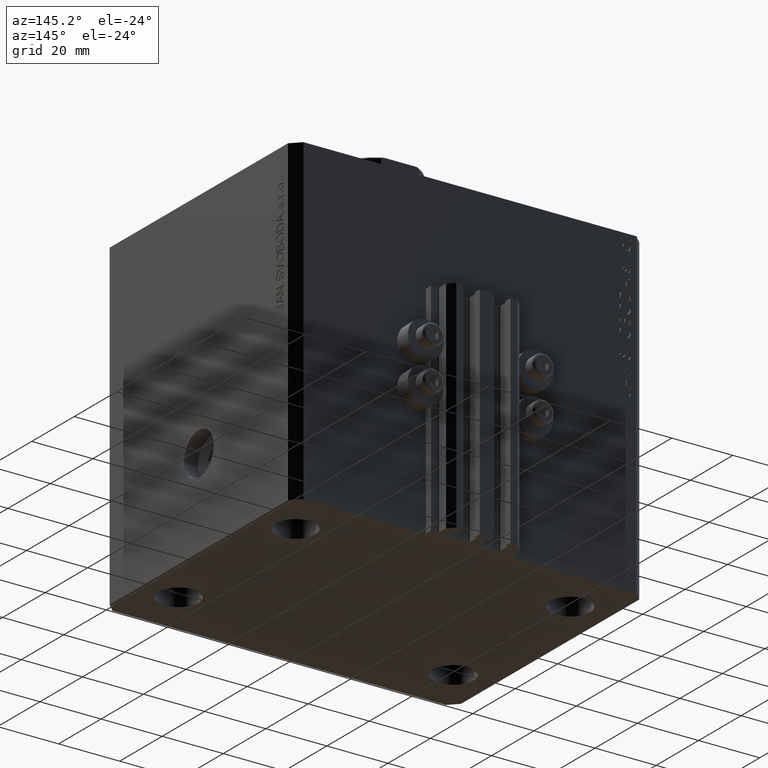
[diagram: clean part render]
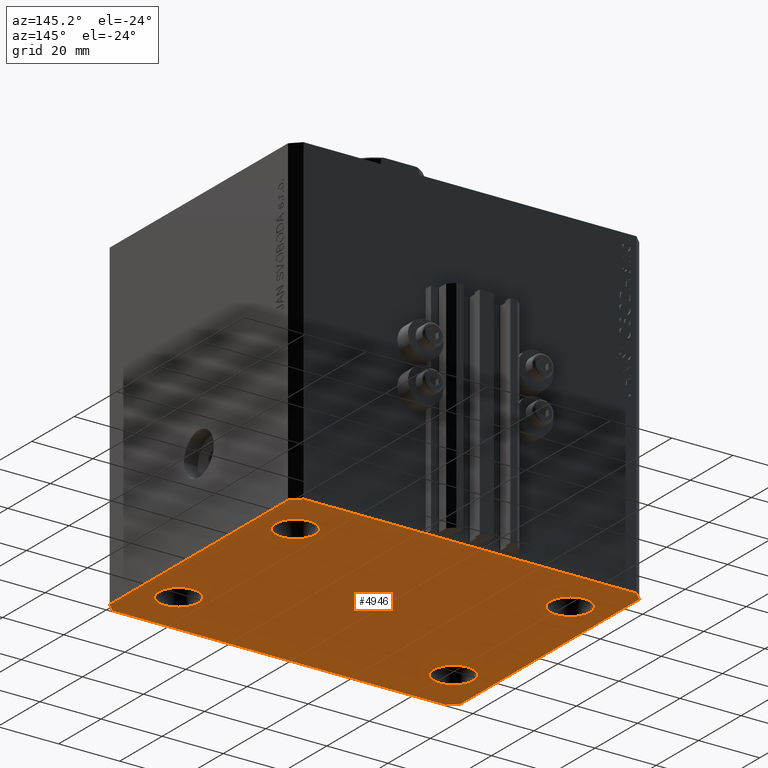
[diagram: same view with one face highlighted and labeled with its STEP entity id]
A machine part, auxiliary view. The second image highlights one B-rep face of the part: STEP entity #4946.
In plain terms, the highlighted planar face has unit normal (0, 0, 1).
Its self-contained STEP definition (entity closure, byte-faithful):
#311 = CARTESIAN_POINT ( 'NONE',  ( -45.00000000000000000, 27.49999999999999645, -105.0000000000000000 ) ) ;
#932 = CIRCLE ( 'NONE', #7034, 6.499999999999999112 ) ;
#1832 = CARTESIAN_POINT ( 'NONE',  ( -54.50000000000000711, -45.00000000000000000, -105.0000000000000000 ) ) ;
#1840 = VERTEX_POINT ( 'NONE', #23216 ) ;
#1917 = FACE_OUTER_BOUND ( 'NONE', #33867, .T. ) ;
#2244 = CARTESIAN_POINT ( 'NONE',  ( -38.50000000000000000, 27.49999999999999645, -105.0000000000000000 ) ) ;
#2726 = DIRECTION ( 'NONE',  ( -2.478176394252581141E-16, -1.000000000000000000, 0.000000000000000000 ) ) ;
#3032 = VERTEX_POINT ( 'NONE', #12242 ) ;
#3069 = CARTESIAN_POINT ( 'NONE',  ( 57.50000000000055422, 41.99999999999997868, -105.0000000000000000 ) ) ;
#3098 = ORIENTED_EDGE ( 'NONE', *, *, #34174, .F. ) ;
#3634 = AXIS2_PLACEMENT_3D ( 'NONE', #311, #39931, #33243 ) ;
#4129 = LINE ( 'NONE', #40642, #44052 ) ;
#4361 = DIRECTION ( 'NONE',  ( 6.443258625056715108E-15, 1.000000000000000000, 0.000000000000000000 ) ) ;
#4393 = EDGE_CURVE ( 'NONE', #42160, #11951, #25864, .T. ) ;
#4439 = CARTESIAN_POINT ( 'NONE',  ( 44.99999999999998579, -27.50000000000000355, -105.0000000000000000 ) ) ;
#4946 = ADVANCED_FACE ( 'NONE', ( #34616, #34145, #37724, #33910, #1917 ), #16500, .F. ) ;
#5475 = VECTOR ( 'NONE', #20202, 1000.000000000000000 ) ;
#5595 = CIRCLE ( 'NONE', #12466, 6.499999999999999112 ) ;
#7034 = AXIS2_PLACEMENT_3D ( 'NONE', #7929, #23427, #44460 ) ;
#7841 = ORIENTED_EDGE ( 'NONE', *, *, #17459, .F. ) ;
#7878 = AXIS2_PLACEMENT_3D ( 'NONE', #4439, #19484, #26863 ) ;
#7929 = CARTESIAN_POINT ( 'NONE',  ( -44.99999999999998579, -27.50000000000000355, -105.0000000000000000 ) ) ;
#8227 = ORIENTED_EDGE ( 'NONE', *, *, #37351, .F. ) ;
#8956 = DIRECTION ( 'NONE',  ( -0.000000000000000000, -0.000000000000000000, -1.000000000000000000 ) ) ;
#9313 = DIRECTION ( 'NONE',  ( 1.000000000000000000, 0.000000000000000000, -0.000000000000000000 ) ) ;
#9662 = VERTEX_POINT ( 'NONE', #2244 ) ;
#9691 = CARTESIAN_POINT ( 'NONE',  ( -57.49999999999998579, 42.00000000000000711, -105.0000000000000000 ) ) ;
#9828 = LINE ( 'NONE', #28205, #27785 ) ;
#10166 = DIRECTION ( 'NONE',  ( -1.000000000000000000, -2.546383084002638829E-16, 0.000000000000000000 ) ) ;
#10274 = ORIENTED_EDGE ( 'NONE', *, *, #40690, .F. ) ;
#10738 = CIRCLE ( 'NONE', #46547, 6.499999999999999112 ) ;
#10853 = DIRECTION ( 'NONE',  ( 1.000000000000000000, 0.000000000000000000, 0.000000000000000000 ) ) ;
#10879 = CARTESIAN_POINT ( 'NONE',  ( 54.50000000000059686, 45.00000000000002842, -105.0000000000000000 ) ) ;
#11242 = DIRECTION ( 'NONE',  ( 1.000000000000000000, 0.000000000000000000, 0.000000000000000000 ) ) ;
#11437 = ORIENTED_EDGE ( 'NONE', *, *, #4393, .F. ) ;
#11951 = VERTEX_POINT ( 'NONE', #31438 ) ;
#12099 = CARTESIAN_POINT ( 'NONE',  ( 54.50000000000000711, -44.99999999999998579, -105.0000000000000000 ) ) ;
#12242 = CARTESIAN_POINT ( 'NONE',  ( 38.49999999999998579, -27.50000000000000355, -105.0000000000000000 ) ) ;
#12398 = ORIENTED_EDGE ( 'NONE', *, *, #41804, .F. ) ;
#12466 = AXIS2_PLACEMENT_3D ( 'NONE', #24202, #31587, #42813 ) ;
#12603 = AXIS2_PLACEMENT_3D ( 'NONE', #46660, #32323, #10853 ) ;
#12900 = DIRECTION ( 'NONE',  ( 0.000000000000000000, 0.000000000000000000, 1.000000000000000000 ) ) ;
#13152 = ORIENTED_EDGE ( 'NONE', *, *, #42466, .F. ) ;
#13556 = EDGE_CURVE ( 'NONE', #11951, #42160, #932, .T. ) ;
#13926 = ORIENTED_EDGE ( 'NONE', *, *, #15317, .F. ) ;
#13956 = LINE ( 'NONE', #39472, #42896 ) ;
#14421 = AXIS2_PLACEMENT_3D ( 'NONE', #22430, #25289, #26468 ) ;
#14557 = EDGE_CURVE ( 'NONE', #45076, #31385, #43572, .T. ) ;
#15288 = DIRECTION ( 'NONE',  ( -0.000000000000000000, -0.000000000000000000, -1.000000000000000000 ) ) ;
#15317 = EDGE_CURVE ( 'NONE', #27674, #35758, #31350, .T. ) ;
#15749 = VERTEX_POINT ( 'NONE', #29906 ) ;
#16132 = ORIENTED_EDGE ( 'NONE', *, *, #22945, .F. ) ;
#16500 = PLANE ( 'NONE',  #17474 ) ;
#16944 = VECTOR ( 'NONE', #24506, 1000.000000000000000 ) ;
#17209 = VERTEX_POINT ( 'NONE', #3069 ) ;
#17336 = LINE ( 'NONE', #45743, #5475 ) ;
#17459 = EDGE_CURVE ( 'NONE', #15749, #20882, #34533, .T. ) ;
#17474 = AXIS2_PLACEMENT_3D ( 'NONE', #45607, #12900, #9313 ) ;
#17690 = ORIENTED_EDGE ( 'NONE', *, *, #14557, .F. ) ;
#19484 = DIRECTION ( 'NONE',  ( -0.000000000000000000, -0.000000000000000000, -1.000000000000000000 ) ) ;
#19774 = ORIENTED_EDGE ( 'NONE', *, *, #23678, .F. ) ;
#20133 = ORIENTED_EDGE ( 'NONE', *, *, #13556, .F. ) ;
#20202 = DIRECTION ( 'NONE',  ( -0.7071067811865369146, 0.7071067811865581199, 0.000000000000000000 ) ) ;
#20407 = CARTESIAN_POINT ( 'NONE',  ( 45.00000000000000000, 27.49999999999999289, -105.0000000000000000 ) ) ;
#20882 = VERTEX_POINT ( 'NONE', #12099 ) ;
#21770 = CARTESIAN_POINT ( 'NONE',  ( -57.50000000000000711, -42.00000000000000711, -105.0000000000000000 ) ) ;
#22430 = CARTESIAN_POINT ( 'NONE',  ( -44.99999999999998579, -27.50000000000000355, -105.0000000000000000 ) ) ;
#22910 = EDGE_CURVE ( 'NONE', #9662, #1840, #43257, .T. ) ;
#22945 = EDGE_CURVE ( 'NONE', #27430, #17209, #4129, .T. ) ;
#23216 = CARTESIAN_POINT ( 'NONE',  ( -51.50000000000000000, 27.49999999999999645, -105.0000000000000000 ) ) ;
#23427 = DIRECTION ( 'NONE',  ( -0.000000000000000000, -0.000000000000000000, -1.000000000000000000 ) ) ;
#23539 = VERTEX_POINT ( 'NONE', #46399 ) ;
#23678 = EDGE_CURVE ( 'NONE', #1840, #9662, #5595, .T. ) ;
#24056 = EDGE_LOOP ( 'NONE', ( #36579, #19774 ) ) ;
#24202 = CARTESIAN_POINT ( 'NONE',  ( -45.00000000000000000, 27.49999999999999645, -105.0000000000000000 ) ) ;
#24506 = DIRECTION ( 'NONE',  ( 1.000000000000000000, 1.273191542001326317E-16, 0.000000000000000000 ) ) ;
#25263 = AXIS2_PLACEMENT_3D ( 'NONE', #43703, #15288, #11242 ) ;
#25289 = DIRECTION ( 'NONE',  ( -0.000000000000000000, -0.000000000000000000, -1.000000000000000000 ) ) ;
#25345 = LINE ( 'NONE', #21770, #33015 ) ;
#25864 = CIRCLE ( 'NONE', #14421, 6.499999999999999112 ) ;
#26468 = DIRECTION ( 'NONE',  ( 1.000000000000000000, 0.000000000000000000, 0.000000000000000000 ) ) ;
#26863 = DIRECTION ( 'NONE',  ( 1.000000000000000000, 0.000000000000000000, 0.000000000000000000 ) ) ;
#27430 = VERTEX_POINT ( 'NONE', #46205 ) ;
#27674 = VERTEX_POINT ( 'NONE', #39677 ) ;
#27785 = VECTOR ( 'NONE', #32499, 1000.000000000000000 ) ;
#28205 = CARTESIAN_POINT ( 'NONE',  ( 54.50000000000000711, -44.99999999999998579, -105.0000000000000000 ) ) ;
#28765 = LINE ( 'NONE', #33045, #46059 ) ;
#29241 = CIRCLE ( 'NONE', #7878, 6.499999999999999112 ) ;
#29377 = CIRCLE ( 'NONE', #12603, 6.499999999999999112 ) ;
#29906 = CARTESIAN_POINT ( 'NONE',  ( -54.50000000000000711, -45.00000000000000000, -105.0000000000000000 ) ) ;
#30480 = ORIENTED_EDGE ( 'NONE', *, *, #38826, .F. ) ;
#31350 = CIRCLE ( 'NONE', #25263, 6.499999999999999112 ) ;
#31385 = VERTEX_POINT ( 'NONE', #40019 ) ;
#31438 = CARTESIAN_POINT ( 'NONE',  ( -51.49999999999998579, -27.50000000000000355, -105.0000000000000000 ) ) ;
#31587 = DIRECTION ( 'NONE',  ( -0.000000000000000000, -0.000000000000000000, -1.000000000000000000 ) ) ;
#31588 = EDGE_CURVE ( 'NONE', #35758, #27674, #10738, .T. ) ;
#32323 = DIRECTION ( 'NONE',  ( -0.000000000000000000, -0.000000000000000000, -1.000000000000000000 ) ) ;
#32342 = CARTESIAN_POINT ( 'NONE',  ( 51.49999999999998579, -27.50000000000000355, -105.0000000000000000 ) ) ;
#32499 = DIRECTION ( 'NONE',  ( 0.7071067811865483499, 0.7071067811865466846, 0.000000000000000000 ) ) ;
#33015 = VECTOR ( 'NONE', #39892, 1000.000000000000114 ) ;
#33045 = CARTESIAN_POINT ( 'NONE',  ( -54.49999999999999289, 45.00000000000000000, -105.0000000000000000 ) ) ;
#33243 = DIRECTION ( 'NONE',  ( 1.000000000000000000, 0.000000000000000000, 0.000000000000000000 ) ) ;
#33298 = EDGE_LOOP ( 'NONE', ( #13152, #36002 ) ) ;
#33867 = EDGE_LOOP ( 'NONE', ( #17690, #3098, #16132, #12398, #7841, #30480, #8227, #10274 ) ) ;
#33910 = FACE_BOUND ( 'NONE', #24056, .T. ) ;
#34145 = FACE_BOUND ( 'NONE', #33298, .T. ) ;
#34174 = EDGE_CURVE ( 'NONE', #17209, #45076, #17336, .T. ) ;
#34378 = VECTOR ( 'NONE', #10166, 1000.000000000000000 ) ;
#34533 = LINE ( 'NONE', #1832, #16944 ) ;
#34616 = FACE_BOUND ( 'NONE', #41376, .T. ) ;
#35074 = VERTEX_POINT ( 'NONE', #9691 ) ;
#35292 = CARTESIAN_POINT ( 'NONE',  ( 51.50000000000000000, 27.49999999999999289, -105.0000000000000000 ) ) ;
#35716 = CARTESIAN_POINT ( 'NONE',  ( -38.49999999999998579, -27.50000000000000355, -105.0000000000000000 ) ) ;
#35758 = VERTEX_POINT ( 'NONE', #35292 ) ;
#36002 = ORIENTED_EDGE ( 'NONE', *, *, #38035, .F. ) ;
#36253 = EDGE_LOOP ( 'NONE', ( #36803, #13926 ) ) ;
#36520 = CARTESIAN_POINT ( 'NONE',  ( 54.50000000000059686, 45.00000000000002842, -105.0000000000000000 ) ) ;
#36579 = ORIENTED_EDGE ( 'NONE', *, *, #22910, .F. ) ;
#36803 = ORIENTED_EDGE ( 'NONE', *, *, #31588, .F. ) ;
#37351 = EDGE_CURVE ( 'NONE', #35074, #23539, #13956, .T. ) ;
#37724 = FACE_BOUND ( 'NONE', #36253, .T. ) ;
#38035 = EDGE_CURVE ( 'NONE', #3032, #41560, #29241, .T. ) ;
#38826 = EDGE_CURVE ( 'NONE', #23539, #15749, #25345, .T. ) ;
#39472 = CARTESIAN_POINT ( 'NONE',  ( -57.49999999999998579, 42.00000000000000711, -105.0000000000000000 ) ) ;
#39677 = CARTESIAN_POINT ( 'NONE',  ( 38.50000000000000000, 27.49999999999999289, -105.0000000000000000 ) ) ;
#39892 = DIRECTION ( 'NONE',  ( 0.7071067811865491270, -0.7071067811865459074, 0.000000000000000000 ) ) ;
#39931 = DIRECTION ( 'NONE',  ( -0.000000000000000000, -0.000000000000000000, -1.000000000000000000 ) ) ;
#40019 = CARTESIAN_POINT ( 'NONE',  ( -54.49999999999999289, 45.00000000000000000, -105.0000000000000000 ) ) ;
#40642 = CARTESIAN_POINT ( 'NONE',  ( 57.50000000000000711, -41.99999999999998579, -105.0000000000000000 ) ) ;
#40690 = EDGE_CURVE ( 'NONE', #31385, #35074, #28765, .T. ) ;
#41376 = EDGE_LOOP ( 'NONE', ( #11437, #20133 ) ) ;
#41560 = VERTEX_POINT ( 'NONE', #32342 ) ;
#41804 = EDGE_CURVE ( 'NONE', #20882, #27430, #9828, .T. ) ;
#42160 = VERTEX_POINT ( 'NONE', #35716 ) ;
#42466 = EDGE_CURVE ( 'NONE', #41560, #3032, #29377, .T. ) ;
#42813 = DIRECTION ( 'NONE',  ( 1.000000000000000000, 0.000000000000000000, 0.000000000000000000 ) ) ;
#42896 = VECTOR ( 'NONE', #2726, 1000.000000000000000 ) ;
#43257 = CIRCLE ( 'NONE', #3634, 6.499999999999999112 ) ;
#43322 = DIRECTION ( 'NONE',  ( -0.7071067811865483499, -0.7071067811865466846, 0.000000000000000000 ) ) ;
#43572 = LINE ( 'NONE', #10879, #34378 ) ;
#43703 = CARTESIAN_POINT ( 'NONE',  ( 45.00000000000000000, 27.49999999999999289, -105.0000000000000000 ) ) ;
#44052 = VECTOR ( 'NONE', #4361, 1000.000000000000000 ) ;
#44460 = DIRECTION ( 'NONE',  ( 1.000000000000000000, 0.000000000000000000, 0.000000000000000000 ) ) ;
#45076 = VERTEX_POINT ( 'NONE', #36520 ) ;
#45486 = DIRECTION ( 'NONE',  ( 1.000000000000000000, 0.000000000000000000, 0.000000000000000000 ) ) ;
#45607 = CARTESIAN_POINT ( 'NONE',  ( 0.000000000000000000, 0.000000000000000000, -105.0000000000000000 ) ) ;
#45743 = CARTESIAN_POINT ( 'NONE',  ( 57.50000000000055422, 41.99999999999997868, -105.0000000000000000 ) ) ;
#46059 = VECTOR ( 'NONE', #43322, 1000.000000000000000 ) ;
#46205 = CARTESIAN_POINT ( 'NONE',  ( 57.50000000000000711, -41.99999999999998579, -105.0000000000000000 ) ) ;
#46399 = CARTESIAN_POINT ( 'NONE',  ( -57.50000000000000711, -42.00000000000000711, -105.0000000000000000 ) ) ;
#46547 = AXIS2_PLACEMENT_3D ( 'NONE', #20407, #8956, #45486 ) ;
#46660 = CARTESIAN_POINT ( 'NONE',  ( 44.99999999999998579, -27.50000000000000355, -105.0000000000000000 ) ) ;